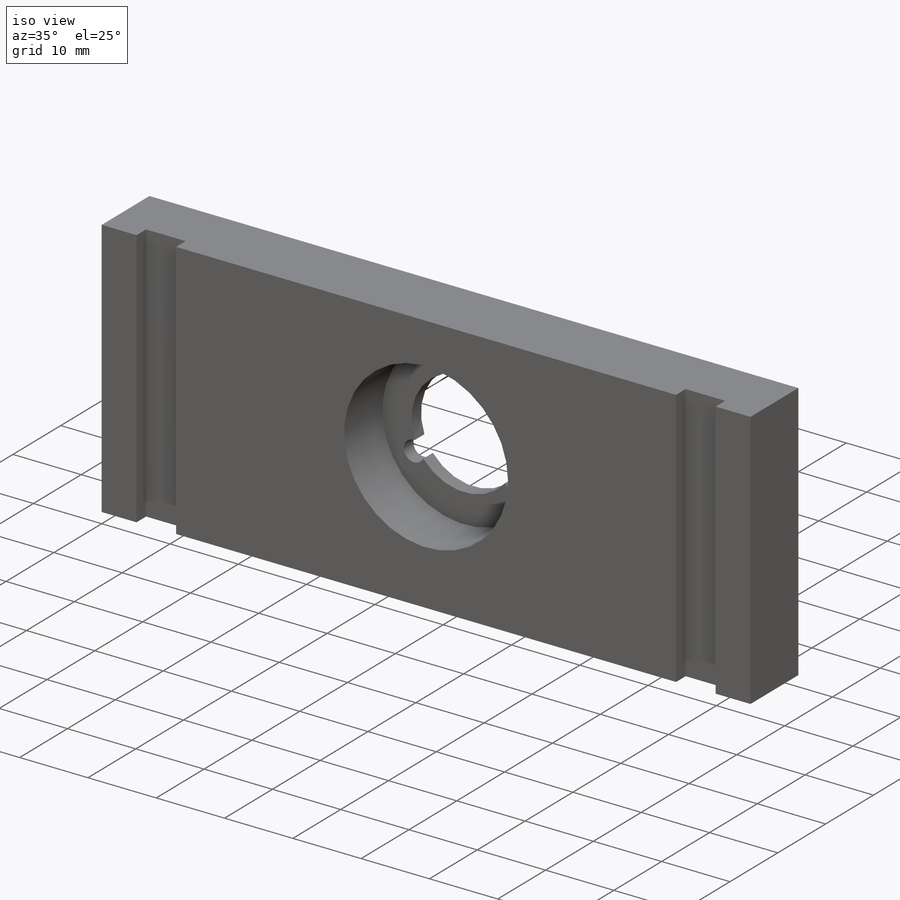
[diagram: iso view]
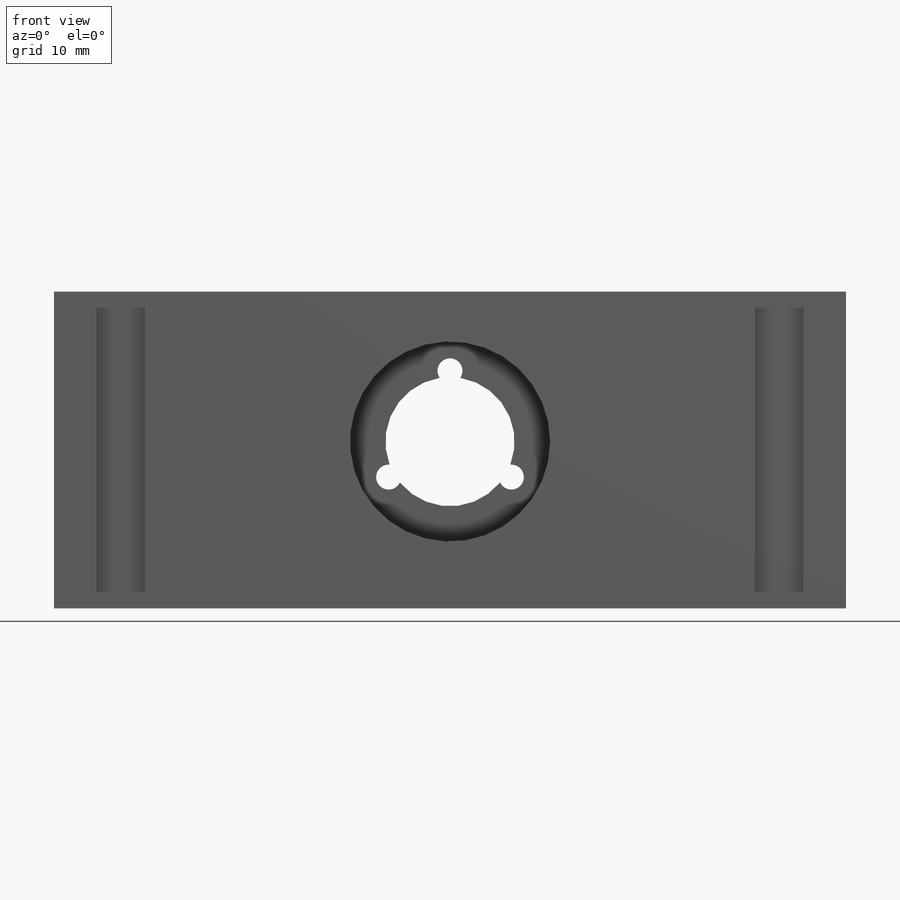
[diagram: front view]
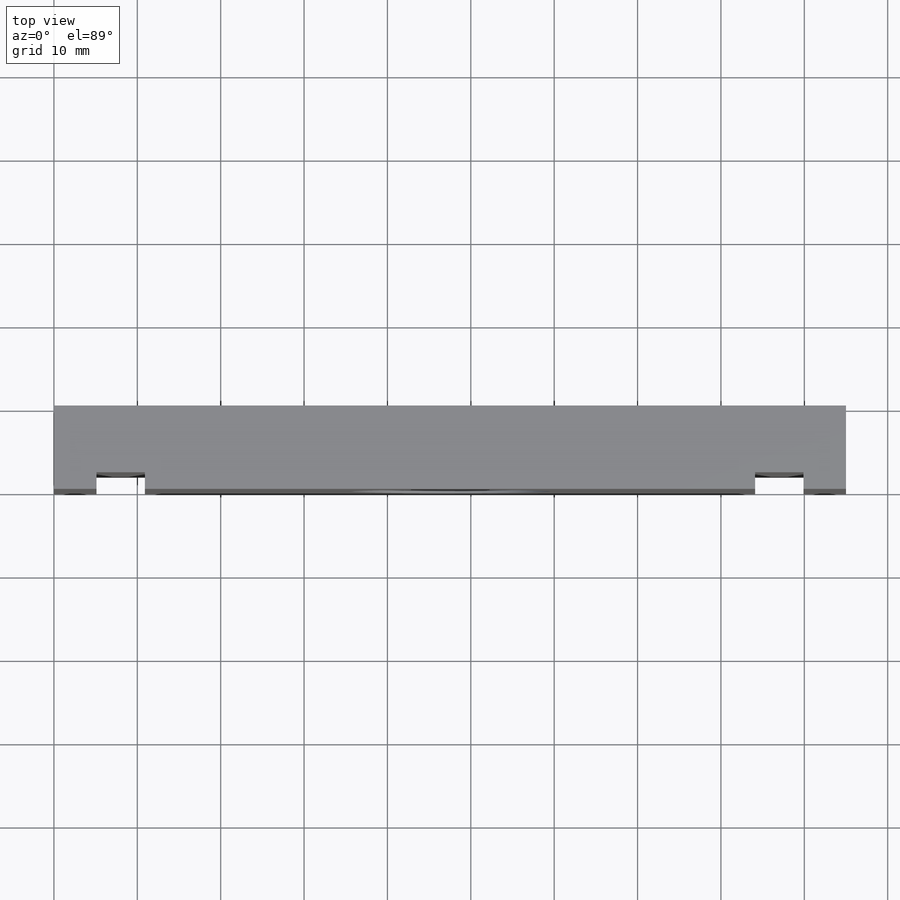
[diagram: top view]
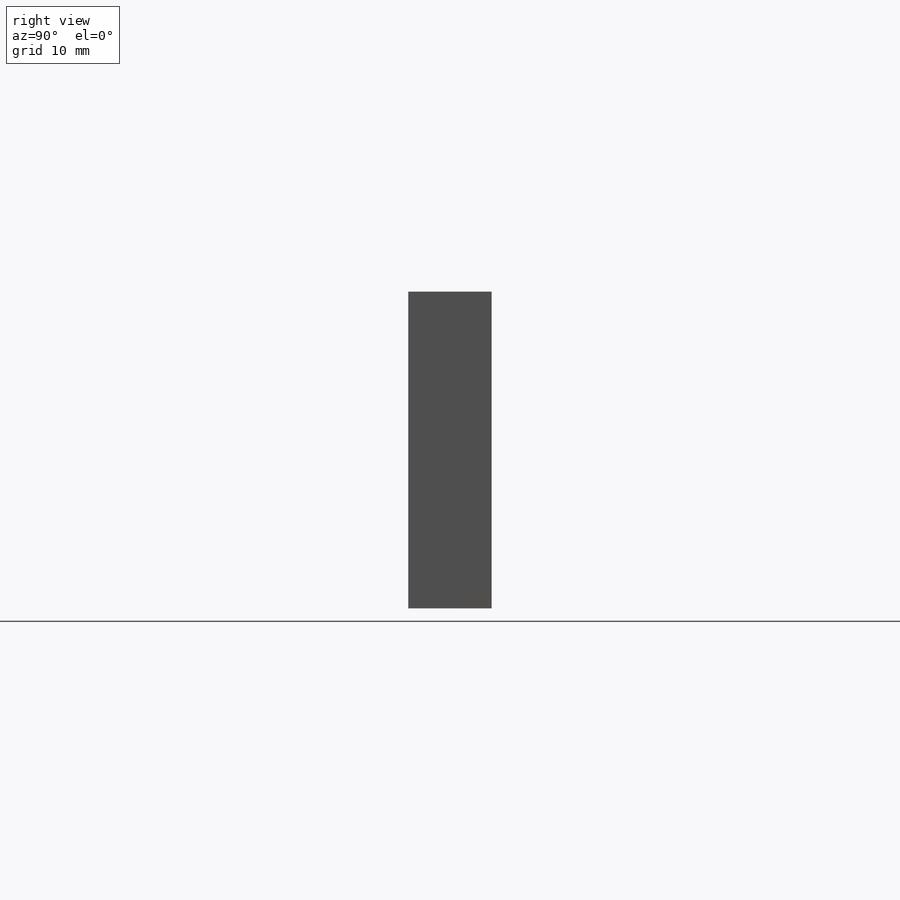
[diagram: right view]
SOLIDWORKS PART (.sldprt)
format: sldprt  version: not decoded by parser v0  size: 167,936 bytes
history: native  units: mm
features: plane x3, sketch x3, cut_extrude x2, material x1, extrude x1 (+11 scaffold rows collapsed)
feature tree (21):
  scaffold x11  (default folders/planes/origin — collapsed)
  material  "Matériau <non spécifié>"
  plane  "Plan de face"
  plane  "Plan de dessus"
  plane  "Plan de droite"
  sketch  "Esquisse1"  dims[c1.D1=~1.997826mm c1.D5=7.75mm c1.D6=1.5mm c2.D1=38.0mm c2.D2=95.0mm c2.D3=47.5mm c2.D4=18.0mm c2.D7=8.5mm c2.D8=8.5mm c2.D9=8.5mm]
  extrude  "Extrusion1"  Depth=10mm
  sketch  "Esquisse3"  dims[D1=24.0mm]
  cut_extrude  "Extrusion3"  Depth=8mm
  sketch  "Esquisse4"  dims[D1=5.8mm D2=5.1mm]
  cut_extrude  "Extrusion4"  Depth=2mm
decode coverage: 6 of 6 modeling features carry decoded parameters
note: ~ marks probable driven/reference dimensions
note: suppression state not decoded; provenance and decode notes live in map.json
